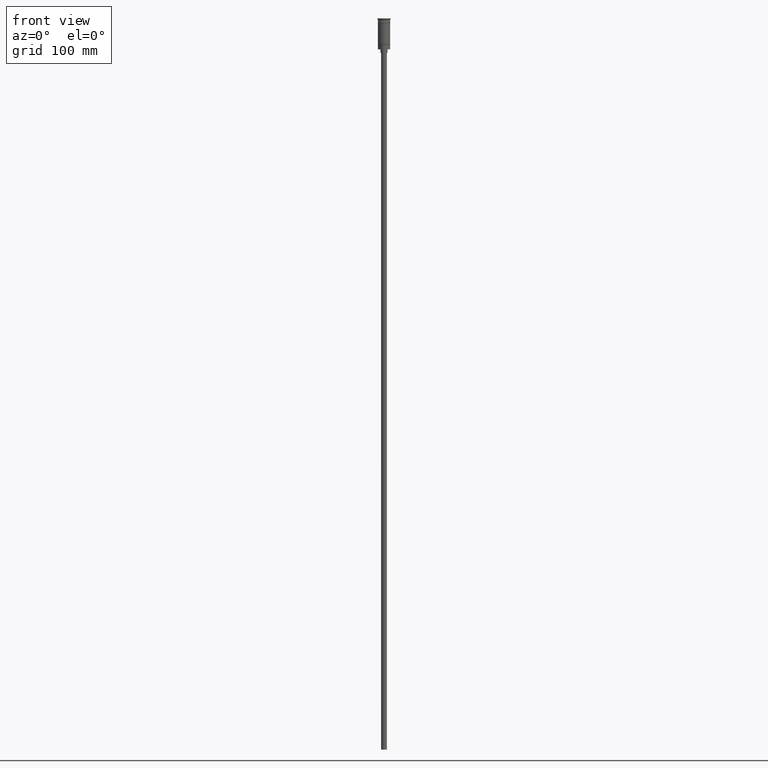
[diagram: clean part render]
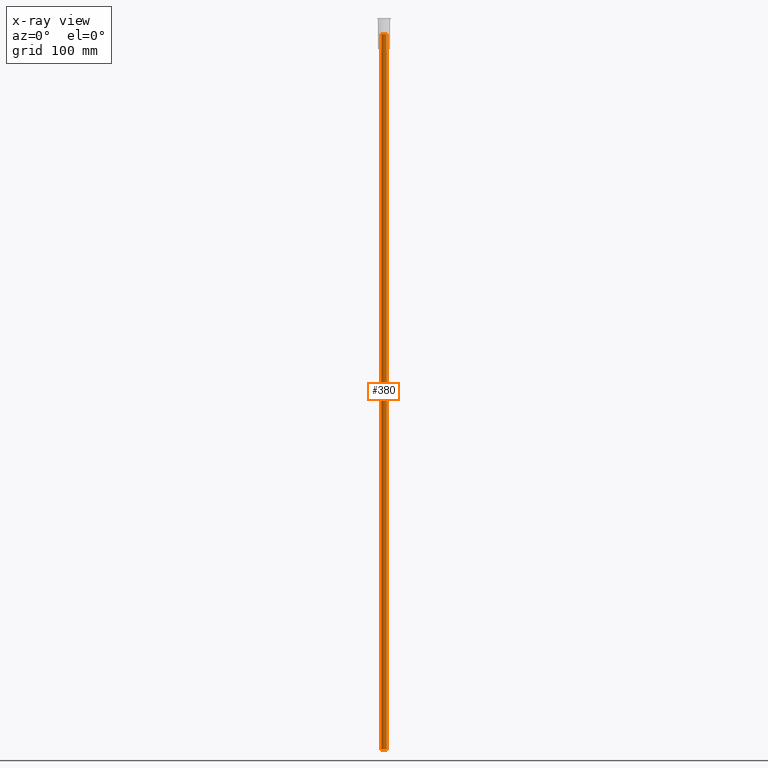
[diagram: x-ray — body ghosted, one internal face saturated and labeled with its STEP entity id]
A machine part, front view, then the same camera in x-ray: the body is ghosted and one INTERNAL B-rep face — a face not visible from any outside direction — is saturated and labeled: STEP entity #380.
In plain terms, the highlighted cylindrical surface (edge-blend (fillet) strip) has radius 2.25 mm, axis along (-0, -0, -1).
Its self-contained STEP definition (entity closure, byte-faithful):
#93 = LINE ( 'NONE', #220, #740 ) ;
#103 = AXIS2_PLACEMENT_3D ( 'NONE', #511, #666, #535 ) ;
#135 = CARTESIAN_POINT ( 'NONE',  ( 0.000000000000000000, 0.000000000000000000, -13.49999999999999822 ) ) ;
#156 = FACE_OUTER_BOUND ( 'NONE', #241, .T. ) ;
#220 = CARTESIAN_POINT ( 'NONE',  ( -2.250000000000000444, 0.000000000000000000, -7.136038969321023551 ) ) ;
#241 = EDGE_LOOP ( 'NONE', ( #803, #306, #517, #1044 ) ) ;
#277 = EDGE_CURVE ( 'NONE', #677, #1557, #93, .T. ) ;
#306 = ORIENTED_EDGE ( 'NONE', *, *, #327, .T. ) ;
#327 = EDGE_CURVE ( 'NONE', #818, #1550, #353, .T. ) ;
#353 = LINE ( 'NONE', #966, #526 ) ;
#380 = ADVANCED_FACE ( 'NONE', ( #156 ), #777, .F. ) ;
#490 = DIRECTION ( 'NONE',  ( -0.000000000000000000, -0.000000000000000000, -1.000000000000000000 ) ) ;
#505 = CARTESIAN_POINT ( 'NONE',  ( -2.250000000000000444, 0.000000000000000000, -13.49999999999999822 ) ) ;
#511 = CARTESIAN_POINT ( 'NONE',  ( 0.000000000000000000, 0.000000000000000000, -7.136038969321023551 ) ) ;
#517 = ORIENTED_EDGE ( 'NONE', *, *, #1361, .T. ) ;
#526 = VECTOR ( 'NONE', #490, 1000.000000000000000 ) ;
#535 = DIRECTION ( 'NONE',  ( -1.000000000000000000, 0.000000000000000000, 0.000000000000000000 ) ) ;
#618 = CARTESIAN_POINT ( 'NONE',  ( -2.250000000000000444, 0.000000000000000000, -626.5000000000000000 ) ) ;
#619 = DIRECTION ( 'NONE',  ( 0.000000000000000000, -1.000000000000000000, 0.000000000000000000 ) ) ;
#666 = DIRECTION ( 'NONE',  ( -0.000000000000000000, -0.000000000000000000, -1.000000000000000000 ) ) ;
#677 = VERTEX_POINT ( 'NONE', #505 ) ;
#689 = AXIS2_PLACEMENT_3D ( 'NONE', #1088, #1094, #960 ) ;
#740 = VECTOR ( 'NONE', #1579, 1000.000000000000000 ) ;
#741 = EDGE_CURVE ( 'NONE', #818, #677, #1159, .T. ) ;
#777 = CYLINDRICAL_SURFACE ( 'NONE', #103, 2.250000000000000444 ) ;
#803 = ORIENTED_EDGE ( 'NONE', *, *, #741, .F. ) ;
#818 = VERTEX_POINT ( 'NONE', #1448 ) ;
#886 = DIRECTION ( 'NONE',  ( -0.000000000000000000, -3.730588120380232914E-16, -1.000000000000000000 ) ) ;
#960 = DIRECTION ( 'NONE',  ( -1.000000000000000000, 0.000000000000000000, 0.000000000000000000 ) ) ;
#966 = CARTESIAN_POINT ( 'NONE',  ( 2.250000000000000444, 2.755455298081544778E-16, -7.136038969321023551 ) ) ;
#1044 = ORIENTED_EDGE ( 'NONE', *, *, #277, .F. ) ;
#1088 = CARTESIAN_POINT ( 'NONE',  ( 0.000000000000000000, 0.000000000000000000, -626.5000000000000000 ) ) ;
#1094 = DIRECTION ( 'NONE',  ( 0.000000000000000000, 0.000000000000000000, -1.000000000000000000 ) ) ;
#1159 = CIRCLE ( 'NONE', #1311, 2.250000000000000444 ) ;
#1311 = AXIS2_PLACEMENT_3D ( 'NONE', #135, #886, #619 ) ;
#1361 = EDGE_CURVE ( 'NONE', #1550, #1557, #1562, .T. ) ;
#1448 = CARTESIAN_POINT ( 'NONE',  ( 2.250000000000000444, 2.755455298081544778E-16, -13.49999999999999822 ) ) ;
#1550 = VERTEX_POINT ( 'NONE', #1597 ) ;
#1557 = VERTEX_POINT ( 'NONE', #618 ) ;
#1562 = CIRCLE ( 'NONE', #689, 2.250000000000000444 ) ;
#1579 = DIRECTION ( 'NONE',  ( -0.000000000000000000, -0.000000000000000000, -1.000000000000000000 ) ) ;
#1597 = CARTESIAN_POINT ( 'NONE',  ( 2.250000000000000444, 2.755455298081544778E-16, -626.5000000000000000 ) ) ;